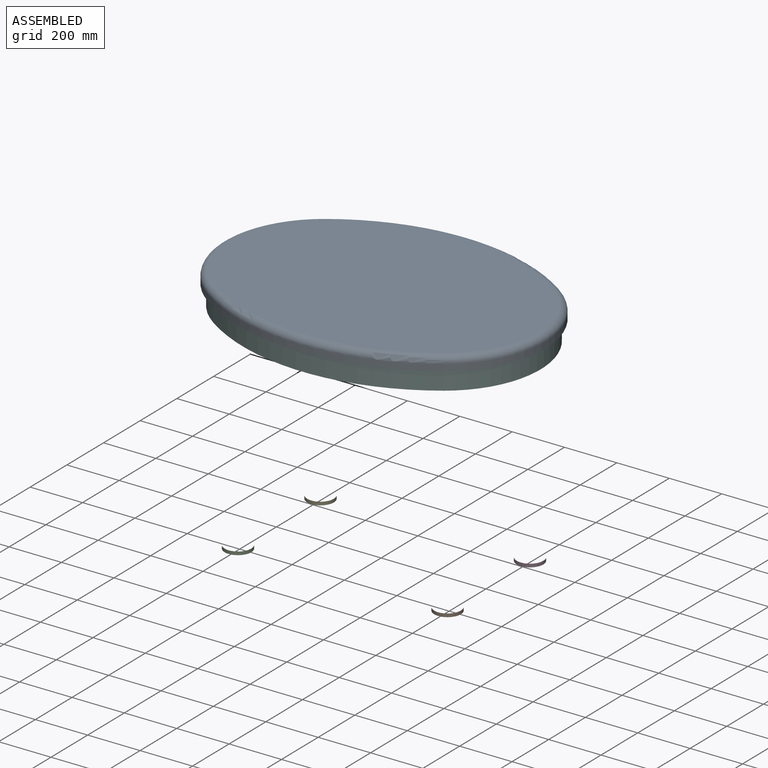
[diagram: assembled view]
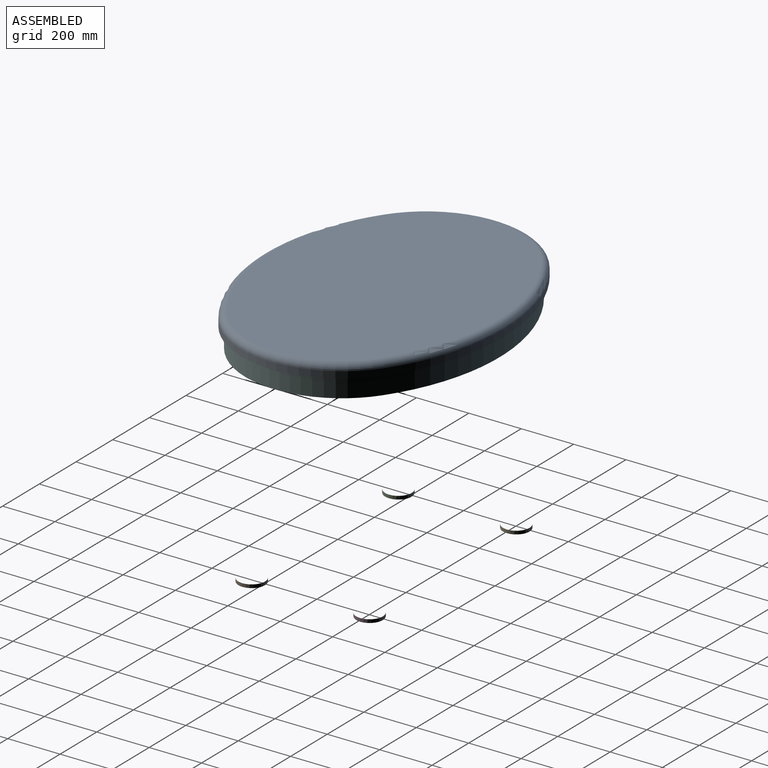
[diagram: assembled view, second angle]
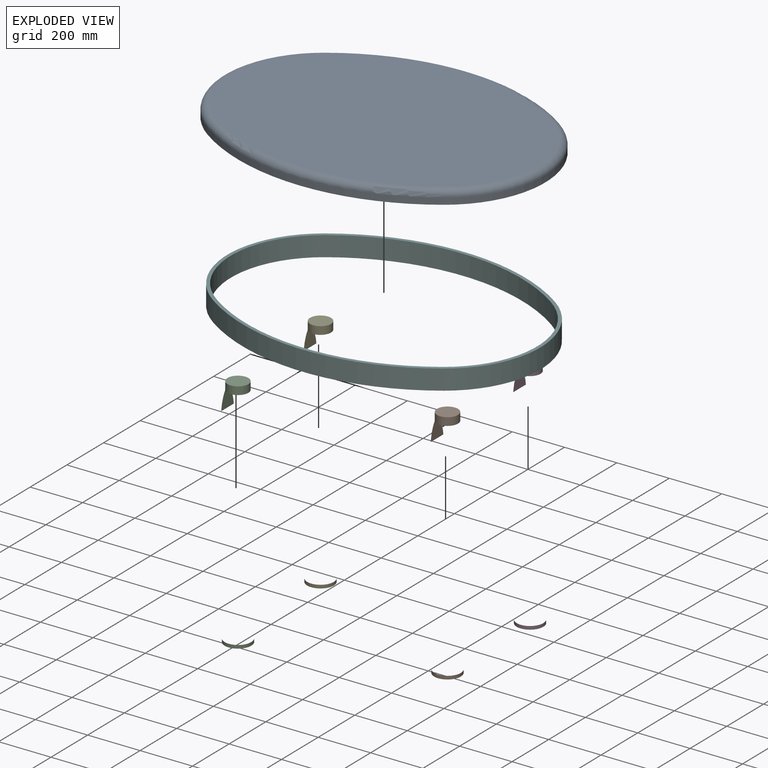
[diagram: exploded view]
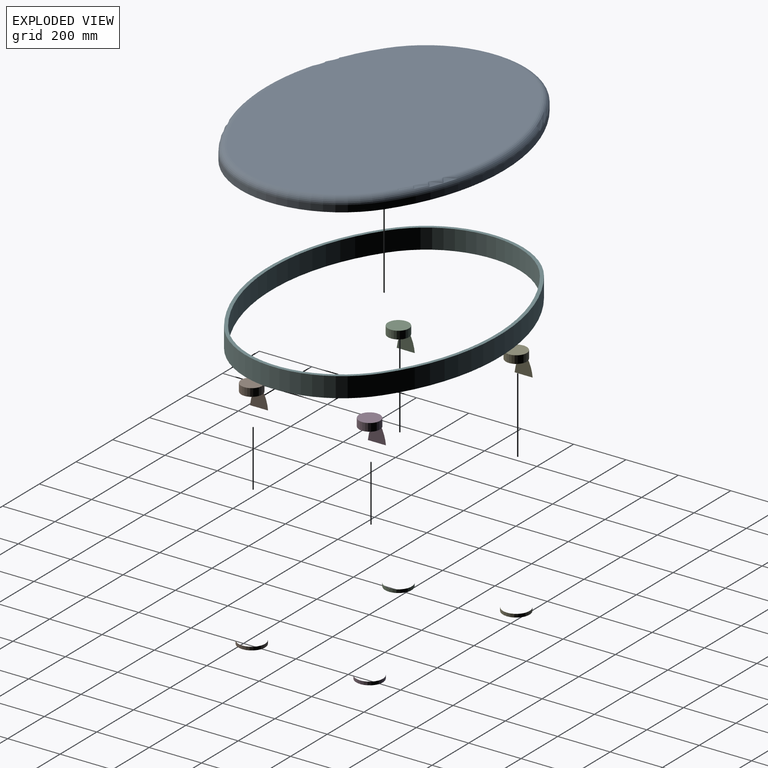
[diagram: exploded view, second angle]
ASSEMBLY  parts=6 mates=5
PART A: 18 faces, bbox 1295.1x1047.5x50.8 mm
  f0: cylinder r=387.07mm len=635mm, axis (0,0,-1), area 18913.5mm2, adj f1,f3,f5,f14
  f1: cylinder r=786.73mm len=900mm, axis (0,0,-1), area 24336.3mm2, adj f0,f2,f5,f15
  f2: cylinder r=387.07mm len=635mm, axis (0,0,-1), area 18913.5mm2, adj f1,f3,f5,f17
  f3: cylinder r=786.73mm len=900mm, axis (0,0,-1), area 24336.3mm2, adj f0,f2,f5,f16
  f4: plane 1180.54x867.01mm, normal (0,0,1), area 807652.4mm2, adj f14,f15,f16,f17
  f5: plane 1231.34x917.81mm, normal (0,0,-1), area 872018.9mm2, adj f0,f1,f2,f3,f7,f9,f11,f13
  f6: cone r=0mm half-angle=59deg, axis (0,0,-1), area 5864.1mm2, adj f7
  f7: cylinder r=40mm len=80mm, axis (0,0,-1), area 6383.7mm2, adj f5,f6
  f8: cone r=0mm half-angle=59deg, axis (0,0,-1), area 5864.1mm2, adj f9
  f9: cylinder r=40mm len=80mm, axis (0,0,-1), area 6383.7mm2, adj f5,f8
  f10: cone r=0mm half-angle=59deg, axis (0,0,-1), area 5864.1mm2, adj f11
  f11: cylinder r=40mm len=80mm, axis (0,0,-1), area 6383.7mm2, adj f5,f10
  f12: cone r=0mm half-angle=59deg, axis (0,0,-1), area 5864.1mm2, adj f13
  f13: cylinder r=40mm len=80mm, axis (0,0,-1), area 6383.7mm2, adj f5,f12
  f14: torus R=361.67mm, axis (0,0,1), area 29000.8mm2, adj f0,f4,f15,f16
  f15: torus R=761.33mm, axis (0,0,1), area 37778.9mm2, adj f1,f4,f14,f17
  f16: torus R=761.33mm, axis (0,0,1), area 37778.9mm2, adj f3,f4,f14,f17
  f17: torus R=361.67mm, axis (0,0,1), area 29000.8mm2, adj f2,f4,f15,f16
PART B: 7 faces, bbox 106.9x106.8x900 mm
  f0: plane 80x80mm, normal (0,0,1), area 5026.5mm2, adj f1
  f1: cylinder r=40mm len=80mm, axis (0,0,1), area 7527.2mm2, adj f0,f2
  f2: revolved ~857.35x106.94mm, area -3832mm2, adj f1,f3,f4,f5
  f3: plane 71.66x68.99mm, normal (1,0,0), area 3551.2mm2, adj f2,f4
  f4: plane 68.99x12.82mm, normal (0,0,-1), area 605.5mm2, adj f2,f3
  f5: cylinder r=50.8mm len=101.6mm, axis (0,0,1), area 4053.7mm2, adj f2,f6
  f6: plane 101.6x101.6mm, normal (0,0,-1), area 8107.3mm2, adj f5
PART C: same geometry as B
PART D: same geometry as B
PART E: same geometry as B
PART F: 10 faces, bbox 1195.8x882.3x76.2 mm
  f0: cylinder r=768.95mm len=879.66mm, axis (0,0,-1), area 71359mm2, adj f1,f7,f8,f9
  f1: cylinder r=369.29mm len=605.83mm, axis (0,0,-1), area 54134mm2, adj f0,f2,f8,f9
  f2: cylinder r=768.95mm len=879.66mm, axis (0,0,-1), area 71359mm2, adj f1,f7,f8,f9
  f3: cylinder r=356.59mm len=585mm, axis (0,0,-1), area 52272.3mm2, adj f4,f6,f8,f9
  f4: cylinder r=756.25mm len=865.13mm, axis (0,0,-1), area 70180.4mm2, adj f3,f5,f8,f9
  f5: cylinder r=356.59mm len=585mm, axis (0,0,-1), area 52272.3mm2, adj f4,f6,f8,f9
  f6: cylinder r=756.25mm len=865.13mm, axis (0,0,-1), area 70180.4mm2, adj f3,f5,f8,f9
  f7: cylinder r=369.29mm len=605.83mm, axis (0,0,-1), area 54134mm2, adj f0,f2,f8,f9
  f8: plane 1195.78x882.25mm, normal (0,0,1), area 41324.3mm2, adj f0,f1,f2,f3,f4,f5,f6,f7
  f9: plane 1195.78x882.25mm, normal (0,0,-1), area 41324.3mm2, adj f0,f1,f2,f3,f4,f5,f6,f7
PLACE A t=(22.56,12.43,414.83)mm
PLACE B t=(422.56,-212.57,440.23)mm
PLACE C t=(-377.44,-212.57,440.23)mm
PLACE D t=(422.56,237.43,440.23)mm
PLACE E t=(-377.44,237.43,440.23)mm
PLACE F t=(22.56,12.43,338.63)mm fixed
MATE fastened F.f8 <-> A.f5  axis (0,0,1) through (22.56,12.43,414.83)mm
MATE fastened B.f1 <-> A.f8  axis (0,0,1) through (422.56,-212.57,440.23)mm
MATE fastened E.f1 <-> A.f12  axis (0,0,1) through (-377.44,237.43,440.23)mm
MATE fastened D.f1 <-> A.f10  axis (0,0,1) through (422.56,237.43,440.23)mm
MATE fastened C.f1 <-> A.f6  axis (0,0,1) through (-377.44,-212.57,440.23)mm
